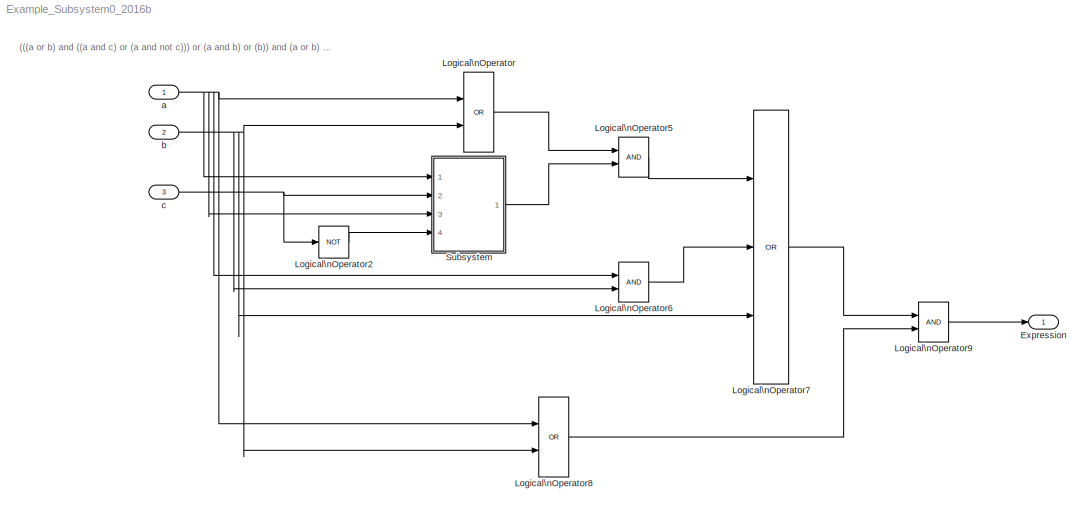
MODEL Example_Subsystem0_2016b
KIND model
BLOCK [Outport] Expression
  IconDisplay = Port number
  SID = 16
BLOCK [Logic] Logical\nOperator
  AllPortsSameDT = off
  Operator = OR
  OutDataTypeStr = boolean
  Ports = [2, 1]
  SID = 6
BLOCK [Logic] Logical\nOperator2
  AllPortsSameDT = off
  Operator = NOT
  OutDataTypeStr = boolean
  Ports = [1, 1]
  SID = 9
BLOCK [Logic] Logical\nOperator5
  AllPortsSameDT = off
  OutDataTypeStr = boolean
  Ports = [2, 1]
  SID = 12
BLOCK [Logic] Logical\nOperator6
  AllPortsSameDT = off
  OutDataTypeStr = boolean
  Ports = [2, 1]
  SID = 13
BLOCK [Logic] Logical\nOperator7
  AllPortsSameDT = off
  Inputs = 3
  Operator = OR
  OutDataTypeStr = boolean
  Ports = [3, 1]
  SID = 15
BLOCK [Logic] Logical\nOperator8
  AllPortsSameDT = off
  Operator = OR
  OutDataTypeStr = boolean
  Ports = [2, 1]
  SID = 17
BLOCK [Logic] Logical\nOperator9
  AllPortsSameDT = off
  OutDataTypeStr = boolean
  Ports = [2, 1]
  SID = 18
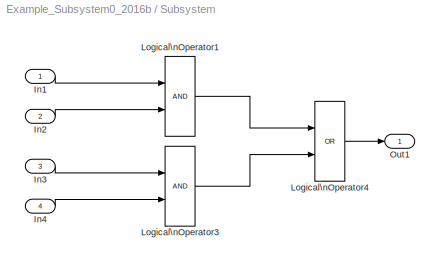
BLOCK [SubSystem] Subsystem
  Ports = [4, 1]
  RequestExecContextInheritance = off
  SID = 20
  Variant = off
BLOCK [Inport] Subsystem/In1
  IconDisplay = Port number
  SID = 21
BLOCK [Inport] Subsystem/In2
  IconDisplay = Port number
  Port = 2
  SID = 23
BLOCK [Inport] Subsystem/In3
  IconDisplay = Port number
  Port = 3
  SID = 24
BLOCK [Inport] Subsystem/In4
  IconDisplay = Port number
  Port = 4
  SID = 28
BLOCK [Logic] Subsystem/Logical\nOperator1
  AllPortsSameDT = off
  OutDataTypeStr = boolean
  Ports = [2, 1]
  SID = 25
BLOCK [Logic] Subsystem/Logical\nOperator3
  AllPortsSameDT = off
  OutDataTypeStr = boolean
  Ports = [2, 1]
  SID = 26
BLOCK [Logic] Subsystem/Logical\nOperator4
  AllPortsSameDT = off
  Operator = OR
  OutDataTypeStr = boolean
  Ports = [2, 1]
  SID = 27
BLOCK [Outport] Subsystem/Out1
  IconDisplay = Port number
  SID = 22
BLOCK [Inport] a
  IconDisplay = Port number
  SID = 1
BLOCK [Inport] b
  IconDisplay = Port number
  Port = 2
  SID = 2
BLOCK [Inport] c
  IconDisplay = Port number
  Port = 3
  SID = 3
ANNOTATION (root): \n \n (((a or b) and ((a and c) or (a and not c))) or (a and b) or (b)) and (a or b) = (a or b)
LINE Logical\nOperator2:1 -> Subsystem:4
LINE Logical\nOperator5:1 -> Logical\nOperator7:1
LINE Logical\nOperator6:1 -> Logical\nOperator7:2
LINE Logical\nOperator7:1 -> Logical\nOperator9:1
LINE Logical\nOperator8:1 -> Logical\nOperator9:2
LINE Logical\nOperator9:1 -> Expression:1
LINE Logical\nOperator:1 -> Logical\nOperator5:1
LINE Subsystem/In1:1 -> Subsystem/Logical\nOperator1:1
LINE Subsystem/In2:1 -> Subsystem/Logical\nOperator1:2
LINE Subsystem/In3:1 -> Subsystem/Logical\nOperator3:1
LINE Subsystem/In4:1 -> Subsystem/Logical\nOperator3:2
LINE Subsystem/Logical\nOperator1:1 -> Subsystem/Logical\nOperator4:1
LINE Subsystem/Logical\nOperator3:1 -> Subsystem/Logical\nOperator4:2
LINE Subsystem/Logical\nOperator4:1 -> Subsystem/Out1:1
LINE Subsystem:1 -> Logical\nOperator5:2
NET a:1 -> Logical\nOperator6:1, Logical\nOperator8:1, Logical\nOperator:1, Subsystem:1, Subsystem:3
NET b:1 -> Logical\nOperator6:2, Logical\nOperator7:3, Logical\nOperator8:2, Logical\nOperator:2
NET c:1 -> Logical\nOperator2:1, Subsystem:2
note: NET lines group one-source signal fan-out (src -> all destinations, sorted); 1:1 wires keep LINE
